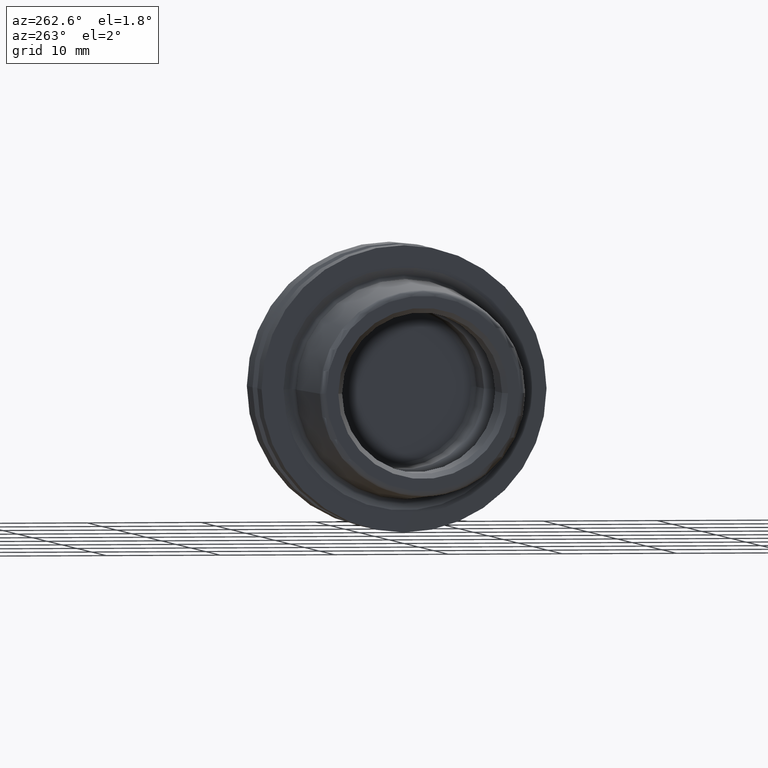
[diagram: clean part render]
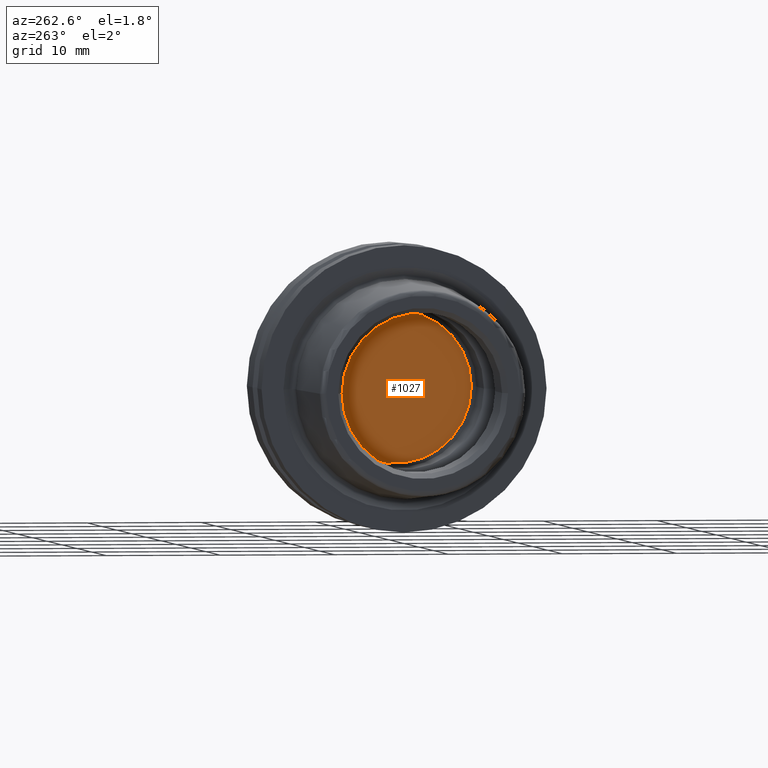
[diagram: same view with one face highlighted and labeled with its STEP entity id]
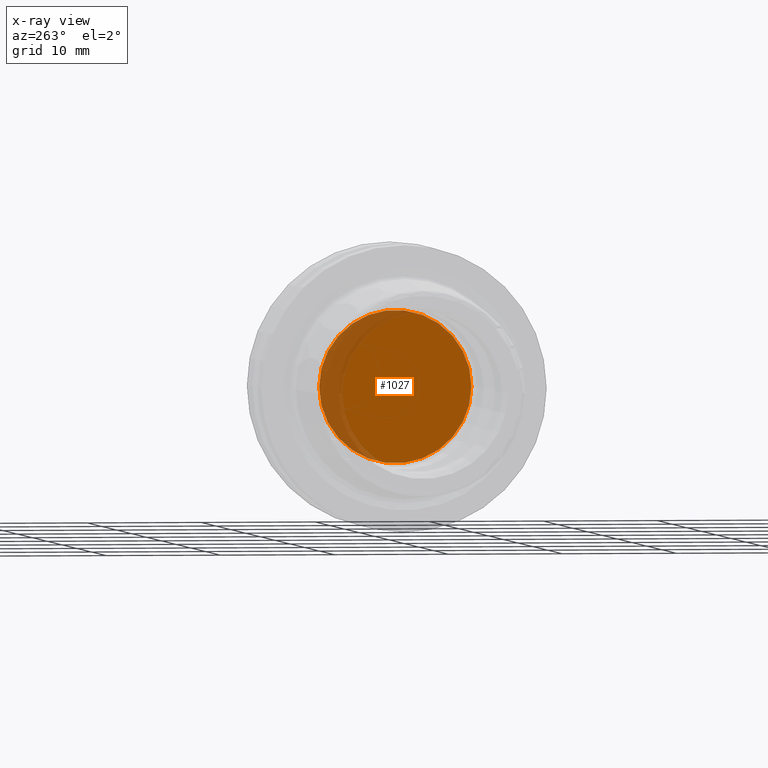
[diagram: x-ray of the same camera — body ghosted, the highlighted face saturated]
A machine part, auxiliary view. The second image highlights one B-rep face of the part: STEP entity #1027.
The next image is the same camera in x-ray: the body ghosted, the highlighted face saturated — about 19% of this face is hidden behind the body in this view.
In plain terms, the highlighted planar face has unit normal (1, 0, 0).
Its self-contained STEP definition (entity closure, byte-faithful):
#213=CARTESIAN_POINT('',(5.95E0,0.E0,0.E0));
#214=DIRECTION('',(-1.E0,0.E0,0.E0));
#215=DIRECTION('',(0.E0,1.E0,0.E0));
#216=AXIS2_PLACEMENT_3D('',#213,#214,#215);
#223=CARTESIAN_POINT('',(5.95E0,0.E0,0.E0));
#224=DIRECTION('',(1.E0,0.E0,0.E0));
#225=DIRECTION('',(0.E0,1.E0,0.E0));
#226=AXIS2_PLACEMENT_3D('',#223,#224,#225);
#592=CARTESIAN_POINT('',(5.95E0,6.675E0,0.E0));
#594=VERTEX_POINT('',#592);
#596=CARTESIAN_POINT('',(5.95E0,-6.675E0,0.E0));
#598=VERTEX_POINT('',#596);
#1018=CARTESIAN_POINT('',(5.95E0,0.E0,0.E0));
#1019=DIRECTION('',(1.E0,0.E0,0.E0));
#1020=DIRECTION('',(0.E0,-1.E0,0.E0));
#1021=AXIS2_PLACEMENT_3D('',#1018,#1019,#1020);
#1022=PLANE('',#1021);
#1023=ORIENTED_EDGE('',*,*,#1013,.T.);
#1024=ORIENTED_EDGE('',*,*,#997,.F.);
#1025=EDGE_LOOP('',(#1023,#1024));
#1026=FACE_OUTER_BOUND('',#1025,.F.);
#1027=ADVANCED_FACE('',(#1026),#1022,.F.);
#217=CIRCLE('',#216,6.675E0);
#227=CIRCLE('',#226,6.675E0);
#997=EDGE_CURVE('',#594,#598,#217,.T.);
#1013=EDGE_CURVE('',#594,#598,#227,.T.);